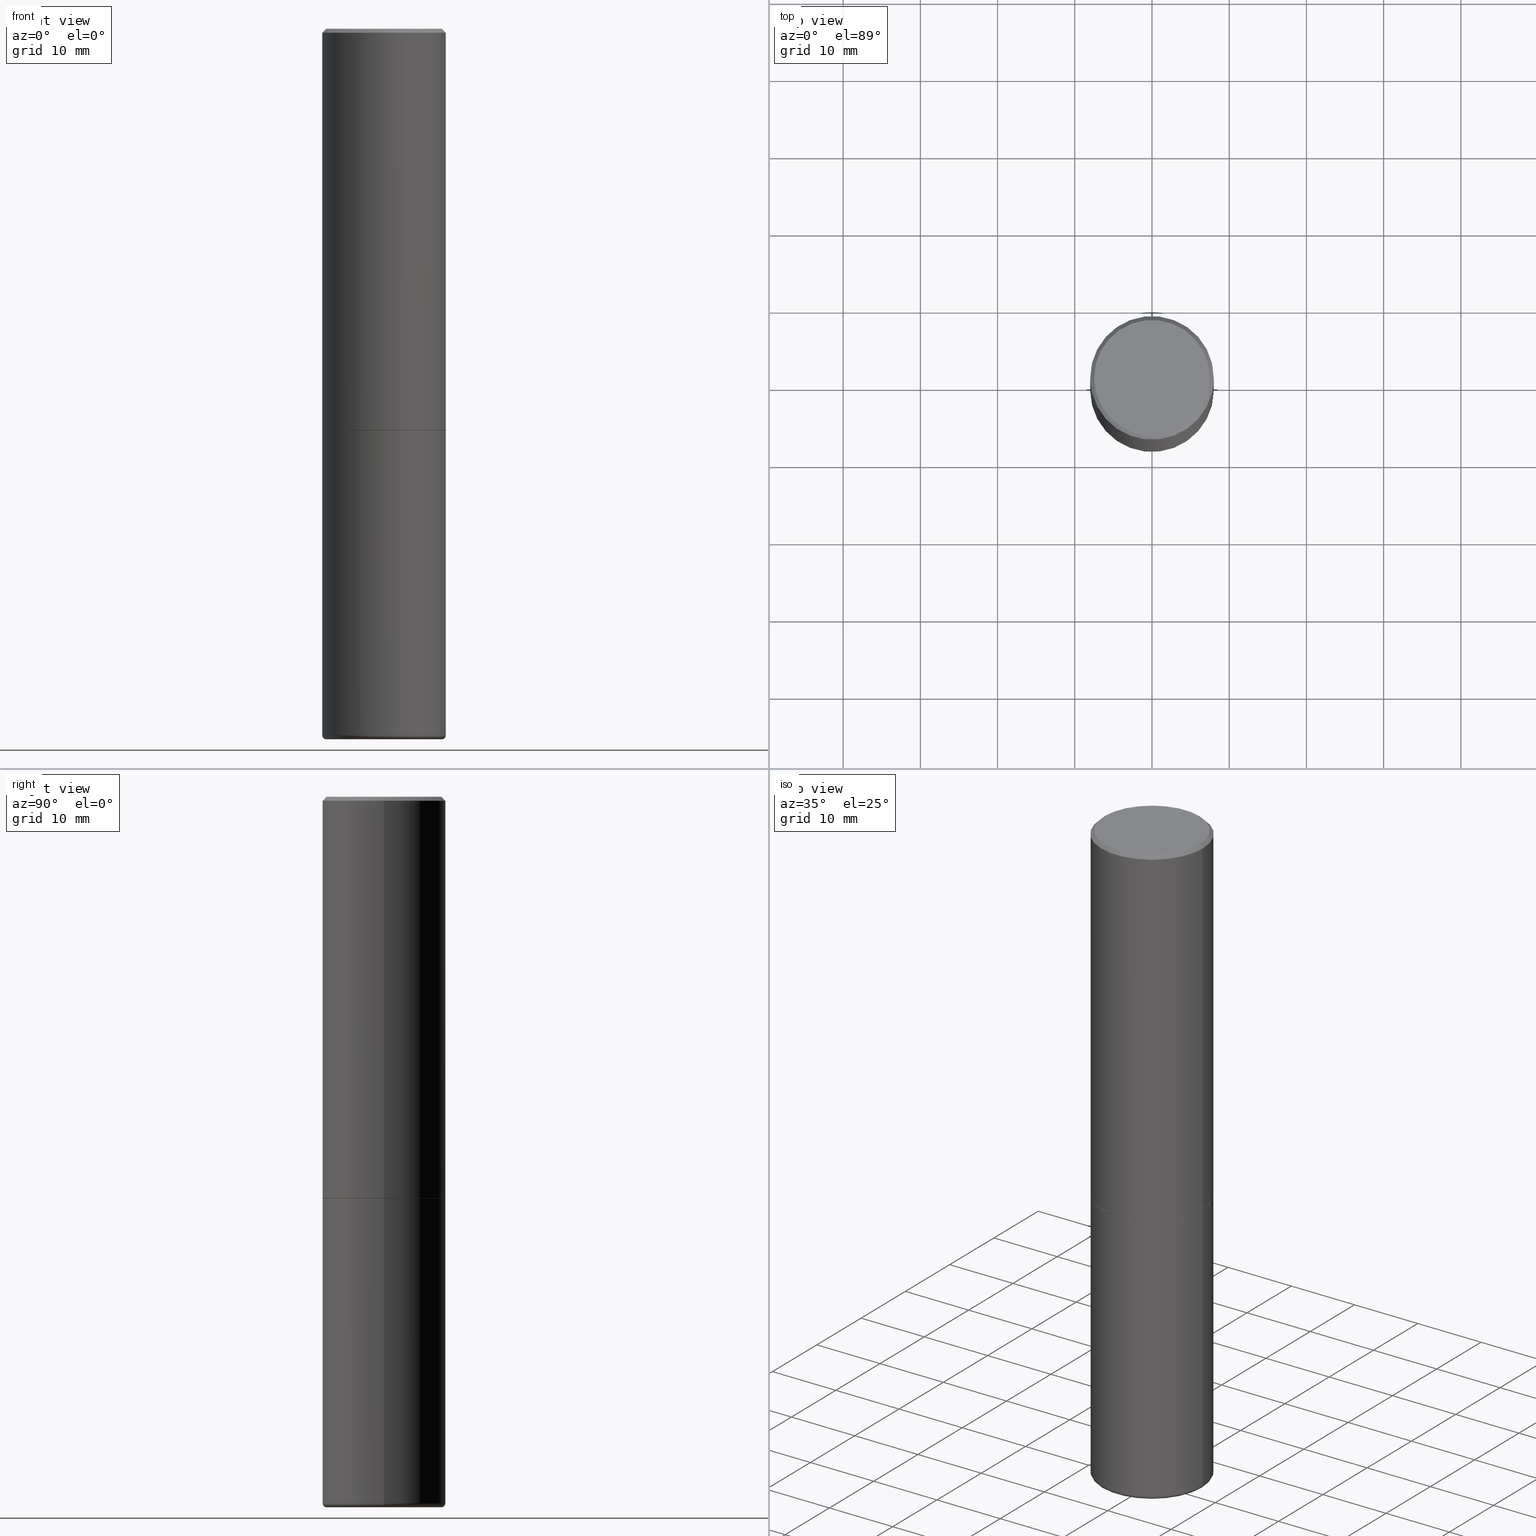
[diagram: canonical four-view strip — front | top / right | iso, engineering-drawing reading convention]
A machine part, canonical four-view strip (front | top / right | iso — engineering-drawing reading convention). The complete STEP part file that produces these views, byte-faithful:
ISO-10303-21;
HEADER;
FILE_DESCRIPTION (( 'STEP AP203' ),
    '1' );
FILE_NAME ('74737.STEP',
    '2024-05-02T19:15:35',
    ( '' ),
    ( '' ),
    'SwSTEP 2.0',
    'SolidWorks 2023',
    '' );
FILE_SCHEMA (( 'CONFIG_CONTROL_DESIGN' ));
ENDSEC;

DATA;
#1 = VECTOR ( 'NONE', #15, 39.37007874015748143 ) ;
#2 = CARTESIAN_POINT ( 'NONE',  ( 8.857488016002564476E-29, -1.264614540928987199E-14, -3.621999999999999886 ) ) ;
#3 = DIRECTION ( 'NONE',  ( 1.000000000000000000, -6.982962677686264344E-15, 0.000000000000000000 ) ) ;
#4 = ADVANCED_FACE ( 'NONE', ( #101 ), #106, .T. ) ;
#5 = DIRECTION ( 'NONE',  ( 1.000000000000000000, -6.982962677686265922E-15, 4.876176775795935793E-29 ) ) ;
#6 = CARTESIAN_POINT ( 'NONE',  ( 0.3149500000000000077, -2.199284095337289871E-15, 1.535751875536930130E-29 ) ) ;
#7 = AXIS2_PLACEMENT_3D ( 'NONE', #363, #398, #10 ) ;
#8 = DIRECTION ( 'NONE',  ( -6.982962677686266711E-15, -1.000000000000000000, 3.491481338843145583E-15 ) ) ;
#9 = EDGE_CURVE ( 'NONE', #251, #92, #352, .T. ) ;
#10 = DIRECTION ( 'NONE',  ( 1.000000000000000000, -6.982962677686266711E-15, 4.883557194083112901E-29 ) ) ;
#11 = MANIFOLD_SOLID_BREP ( 'Body-Move/Copy2[2]', #255 ) ;
#12 = DIRECTION ( 'NONE',  ( -2.445468806185136597E-29, 3.491481338843145583E-15, 1.000000000000000000 ) ) ;
#13 = ADVANCED_FACE ( 'NONE', ( #99 ), #277, .T. ) ;
#14 = FACE_OUTER_BOUND ( 'NONE', #24, .T. ) ;
#15 = DIRECTION ( 'NONE',  ( -2.445468806185136877E-29, 3.491481338843145188E-15, 1.000000000000000000 ) ) ;
#16 = APPROVAL_ROLE ( '' ) ;
#17 = CARTESIAN_POINT ( 'NONE',  ( 0.3149500000000000077, -9.347044692216978073E-15, -2.047199999999999687 ) ) ;
#18 = CIRCLE ( 'NONE', #70, 0.3139500000000000068 ) ;
#19 = CARTESIAN_POINT ( 'NONE',  ( -4.488561081641444621E-45, 6.408475632635922878E-31, 1.835460370743176819E-16 ) ) ;
#20 = ORIENTED_EDGE ( 'NONE', *, *, #104, .F. ) ;
#21 = CARTESIAN_POINT ( 'NONE',  ( 4.890937612370289799E-31, -6.982962677686315028E-17, -0.02000000000000006981 ) ) ;
#22 = PERSON_AND_ORGANIZATION_ROLE ( 'design_supplier' ) ;
#23 = EDGE_LOOP ( 'NONE', ( #210, #25 ) ) ;
#24 = EDGE_LOOP ( 'NONE', ( #405, #128, #313, #126 ) ) ;
#25 = ORIENTED_EDGE ( 'NONE', *, *, #273, .T. ) ;
#26 = SECURITY_CLASSIFICATION ( '', '', #372 ) ;
#27 = ORIENTED_EDGE ( 'NONE', *, *, #315, .T. ) ;
#28 = EDGE_CURVE ( 'NONE', #377, #30, #239, .T. ) ;
#29 = VECTOR ( 'NONE', #334, 39.37007874015748143 ) ;
#30 = VERTEX_POINT ( 'NONE', #330 ) ;
#31 = CARTESIAN_POINT ( 'NONE',  ( 8.809312280520716617E-29, -1.257736322691466396E-14, -3.602300000000000058 ) ) ;
#32 = AXIS2_PLACEMENT_3D ( 'NONE', #331, #366, #177 ) ;
#33 = CARTESIAN_POINT ( 'NONE',  ( -0.3149499999999999522, 2.129454468560426178E-15, -0.02000000000000006981 ) ) ;
#34 = VECTOR ( 'NONE', #390, 39.37007874015748143 ) ;
#35 = LINE ( 'NONE', #6, #347 ) ;
#36 = EDGE_CURVE ( 'NONE', #117, #205, #46, .T. ) ;
#37 = PLANE ( 'NONE',  #93 ) ;
#38 = CARTESIAN_POINT ( 'NONE',  ( 0.2952500000000000124, -1.470786513987674265E-14, -3.621999999999999886 ) ) ;
#39 = DIRECTION ( 'NONE',  ( 1.000000000000000000, -6.982962677686264344E-15, 0.000000000000000000 ) ) ;
#40 = CYLINDRICAL_SURFACE ( 'NONE', #252, 0.3149500000000000077 ) ;
#41 = ADVANCED_FACE ( 'NONE', ( #195 ), #40, .T. ) ;
#42 = CIRCLE ( 'NONE', #94, 0.2952500000000000124 ) ;
#43 = DIRECTION ( 'NONE',  ( 2.438088387897960049E-29, -3.491481338843145188E-15, -1.000000000000000000 ) ) ;
#44 = DIRECTION ( 'NONE',  ( 1.000000000000000000, -6.982962677686265922E-15, 4.874125435057325556E-29 ) ) ;
#45 = PERSON_AND_ORGANIZATION_ROLE ( 'classification_officer' ) ;
#46 = LINE ( 'NONE', #138, #29 ) ;
#47 = TOROIDAL_SURFACE ( 'NONE', #262, 0.2952500000000000124, 0.01969999999999989468 ) ;
#48 = CARTESIAN_POINT ( 'NONE',  ( -0.3149500000000000077, 2.237854346276435590E-15, -1.549218606675782676E-29 ) ) ;
#49 = ORIENTED_EDGE ( 'NONE', *, *, #412, .F. ) ;
#50 = EDGE_CURVE ( 'NONE', #156, #251, #217, .T. ) ;
#51 = VECTOR ( 'NONE', #348, 39.37007874015748143 ) ;
#52 = CARTESIAN_POINT ( 'NONE',  ( -0.3139500000000000068, -4.911713223612628457E-15, -2.047199999999999243 ) ) ;
#53 = CALENDAR_DATE ( 2024, 2, 5 ) ;
#54 = VERTEX_POINT ( 'NONE', #228 ) ;
#55 = CALENDAR_DATE ( 2024, 2, 5 ) ;
#56 = VERTEX_POINT ( 'NONE', #17 ) ;
#57 = ORIENTED_EDGE ( 'NONE', *, *, #50, .T. ) ;
#58 = AXIS2_PLACEMENT_3D ( 'NONE', #192, #148, #107 ) ;
#59 = EDGE_CURVE ( 'NONE', #413, #117, #253, .T. ) ;
#60 = CIRCLE ( 'NONE', #121, 0.3149499999999999522 ) ;
#61 = DIRECTION ( 'NONE',  ( 2.445468806185136597E-29, -3.491481338843145583E-15, -1.000000000000000000 ) ) ;
#62 = AXIS2_PLACEMENT_3D ( 'NONE', #21, #83, #236 ) ;
#63 = DIRECTION ( 'NONE',  ( -2.445468806185136597E-29, 3.491481338843145583E-15, 1.000000000000000000 ) ) ;
#64 = AXIS2_PLACEMENT_3D ( 'NONE', #137, #357, #66 ) ;
#65 = EDGE_CURVE ( 'NONE', #56, #185, #318, .T. ) ;
#66 = DIRECTION ( 'NONE',  ( -1.000000000000000000, 6.982962677686266711E-15, 0.000000000000000000 ) ) ;
#67 =( CONVERSION_BASED_UNIT ( 'INCH', #283 ) LENGTH_UNIT ( ) NAMED_UNIT ( #224 ) );
#68 = ADVANCED_FACE ( 'NONE', ( #102 ), #226, .F. ) ;
#69 = DIRECTION ( 'NONE',  ( 1.000000000000000000, -6.982962677686265922E-15, 4.874125435057325556E-29 ) ) ;
#70 = AXIS2_PLACEMENT_3D ( 'NONE', #115, #298, #233 ) ;
#71 = FACE_OUTER_BOUND ( 'NONE', #370, .T. ) ;
#72 = DIRECTION ( 'NONE',  ( 1.000000000000000000, -6.982962677686266711E-15, 4.876176775795936353E-29 ) ) ;
#73 = CIRCLE ( 'NONE', #351, 0.01969999999999985998 ) ;
#74 = CARTESIAN_POINT ( 'NONE',  ( 5.006363740022209999E-29, -7.147760596879685046E-15, -2.047199999999999243 ) ) ;
#75 = CARTESIAN_POINT ( 'NONE',  ( 0.000000000000000000, 0.000000000000000000, 0.000000000000000000 ) ) ;
#76 = APPROVAL ( #178, 'UNSPECIFIED' ) ;
#77 = DIRECTION ( 'NONE',  ( -2.445468806185136597E-29, 3.491481338843145583E-15, 1.000000000000000000 ) ) ;
#78 = CYLINDRICAL_SURFACE ( 'NONE', #386, 0.3149500000000000077 ) ;
#79 = DATE_AND_TIME ( #367, #314 ) ;
#80 = DIRECTION ( 'NONE',  ( -2.445468806185136597E-29, 3.491481338843145583E-15, 1.000000000000000000 ) ) ;
#81 = LINE ( 'NONE', #268, #1 ) ;
#82 = ORIENTED_EDGE ( 'NONE', *, *, #312, .T. ) ;
#83 = DIRECTION ( 'NONE',  ( -2.445468806185136597E-29, 3.491481338843145583E-15, 1.000000000000000000 ) ) ;
#84 = DATE_TIME_ROLE ( 'classification_date' ) ;
#85 = ADVANCED_FACE ( 'NONE', ( #364 ), #284, .T. ) ;
#86 = ORIENTED_EDGE ( 'NONE', *, *, #418, .F. ) ;
#87 = APPLICATION_PROTOCOL_DEFINITION ( 'international standard', 'config_control_design', 1994, #227 ) ;
#88 = ORIENTED_EDGE ( 'NONE', *, *, #356, .T. ) ;
#89 = ADVANCED_FACE ( 'NONE', ( #14 ), #142, .T. ) ;
#90 = COORDINATED_UNIVERSAL_TIME_OFFSET ( 5, 0, .BEHIND. ) ;
#91 = ORIENTED_EDGE ( 'NONE', *, *, #59, .F. ) ;
#92 = VERTEX_POINT ( 'NONE', #113 ) ;
#93 = AXIS2_PLACEMENT_3D ( 'NONE', #167, #170, #287 ) ;
#94 = AXIS2_PLACEMENT_3D ( 'NONE', #368, #80, #203 ) ;
#95 = EDGE_LOOP ( 'NONE', ( #342, #269, #340, #125 ) ) ;
#96 = EDGE_CURVE ( 'NONE', #92, #56, #35, .T. ) ;
#97 = AXIS2_PLACEMENT_3D ( 'NONE', #31, #280, #131 ) ;
#98 = EDGE_LOOP ( 'NONE', ( #274, #123, #242, #184 ) ) ;
#99 = FACE_OUTER_BOUND ( 'NONE', #153, .T. ) ;
#100 = CARTESIAN_POINT ( 'NONE',  ( 0.3149499999999999522, -2.230543471175006661E-15, -0.02000000000000006981 ) ) ;
#101 = FACE_OUTER_BOUND ( 'NONE', #207, .T. ) ;
#102 = FACE_OUTER_BOUND ( 'NONE', #23, .T. ) ;
#103 = AXIS2_PLACEMENT_3D ( 'NONE', #300, #288, #261 ) ;
#104 = EDGE_CURVE ( 'NONE', #413, #317, #166, .T. ) ;
#105 = CARTESIAN_POINT ( 'NONE',  ( 8.726305720484796028E-29, -1.820591954908441559E-15, -2.047200000000000131 ) ) ;
#106 = CONICAL_SURFACE ( 'NONE', #216, 0.3149499999999999522, 0.7853981633974469467 ) ;
#107 = DIRECTION ( 'NONE',  ( 1.000000000000000000, -6.982962677686264344E-15, 0.000000000000000000 ) ) ;
#108 = PERSON_AND_ORGANIZATION ( #392, #110 ) ;
#109 = CYLINDRICAL_SURFACE ( 'NONE', #323, 0.3149500000000001743 ) ;
#110 = ORGANIZATION ( 'UNSPECIFIED', 'UNSPECIFIED', '' ) ;
#111 = CARTESIAN_POINT ( 'NONE',  ( 4.890937612370289799E-31, -6.982962677686315028E-17, -0.02000000000000006981 ) ) ;
#112 = APPROVAL_DATE_TIME ( #152, #353 ) ;
#113 = CARTESIAN_POINT ( 'NONE',  ( 0.3149499999999999522, -1.477664732225195383E-14, -3.602300000000000058 ) ) ;
#114 = CC_DESIGN_DATE_AND_TIME_ASSIGNMENT ( #183, #122, ( #200 ) ) ;
#115 = CARTESIAN_POINT ( 'NONE',  ( 5.006363740022209999E-29, -7.147760596879685046E-15, -2.047199999999999243 ) ) ;
#116 = DATE_AND_TIME ( #339, #258 ) ;
#117 = VERTEX_POINT ( 'NONE', #194 ) ;
#118 = COORDINATED_UNIVERSAL_TIME_OFFSET ( 5, 0, .BEHIND. ) ;
#119 = ADVANCED_FACE ( 'NONE', ( #145 ), #109, .T. ) ;
#120 = ORIENTED_EDGE ( 'NONE', *, *, #132, .F. ) ;
#121 = AXIS2_PLACEMENT_3D ( 'NONE', #111, #301, #305 ) ;
#122 = DATE_TIME_ROLE ( 'creation_date' ) ;
#123 = ORIENTED_EDGE ( 'NONE', *, *, #412, .T. ) ;
#124 = EDGE_CURVE ( 'NONE', #205, #249, #168, .T. ) ;
#125 = ORIENTED_EDGE ( 'NONE', *, *, #312, .F. ) ;
#126 = ORIENTED_EDGE ( 'NONE', *, *, #124, .F. ) ;
#127 = APPLICATION_CONTEXT ( 'configuration controlled 3d designs of mechanical parts and assemblies' ) ;
#128 = ORIENTED_EDGE ( 'NONE', *, *, #389, .T. ) ;
#129 = CIRCLE ( 'NONE', #213, 0.3149500000000002853 ) ;
#130 = EDGE_LOOP ( 'NONE', ( #120, #187 ) ) ;
#131 = DIRECTION ( 'NONE',  ( 1.000000000000000000, -6.982962677686269866E-15, 0.000000000000000000 ) ) ;
#132 = EDGE_CURVE ( 'NONE', #160, #156, #359, .T. ) ;
#133 = CC_DESIGN_PERSON_AND_ORGANIZATION_ASSIGNMENT ( #407, #150, ( #281 ) ) ;
#134 = DIRECTION ( 'NONE',  ( 2.438088387897960049E-29, -3.491481338843145188E-15, -1.000000000000000000 ) ) ;
#135 = CARTESIAN_POINT ( 'NONE',  ( -0.3149500000000000077, -7.624707565620739308E-15, -2.047199999999999687 ) ) ;
#136 = DIRECTION ( 'NONE',  ( 7.105427357601001859E-15, 1.000000000000000000, -3.491481338843145583E-15 ) ) ;
#137 = CARTESIAN_POINT ( 'NONE',  ( 4.890937612370289799E-31, -6.982962677686315028E-17, -0.02000000000000006981 ) ) ;
#138 = CARTESIAN_POINT ( 'NONE',  ( 0.3139500000000000068, -9.340061729539288903E-15, -2.047199999999999243 ) ) ;
#139 = CC_DESIGN_APPROVAL ( #76, ( #416 ) ) ;
#140 = APPROVAL_PERSON_ORGANIZATION ( #240, #353, #16 ) ;
#141 = CARTESIAN_POINT ( 'NONE',  ( 8.809312280520716617E-29, -1.257736322691466396E-14, -3.602300000000000058 ) ) ;
#142 = CYLINDRICAL_SURFACE ( 'NONE', #103, 0.3149500000000001743 ) ;
#143 = FACE_OUTER_BOUND ( 'NONE', #159, .T. ) ;
#144 = COORDINATED_UNIVERSAL_TIME_OFFSET ( 5, 0, .BEHIND. ) ;
#145 = FACE_OUTER_BOUND ( 'NONE', #98, .T. ) ;
#146 = DIRECTION ( 'NONE',  ( -2.445468806185136597E-29, 3.491481338843145583E-15, 1.000000000000000000 ) ) ;
#147 = PERSON_AND_ORGANIZATION ( #392, #110 ) ;
#148 = DIRECTION ( 'NONE',  ( -2.445468806185136597E-29, 3.491481338843145583E-15, 1.000000000000000000 ) ) ;
#149 = CARTESIAN_POINT ( 'NONE',  ( 5.003918271216025517E-29, -7.144269115540843617E-15, -2.046199999999999797 ) ) ;
#150 = PERSON_AND_ORGANIZATION_ROLE ( 'design_owner' ) ;
#151 = ORIENTED_EDGE ( 'NONE', *, *, #59, .T. ) ;
#152 = DATE_AND_TIME ( #401, #278 ) ;
#153 = EDGE_LOOP ( 'NONE', ( #20, #151, #415, #49 ) ) ;
#154 = ADVANCED_BREP_SHAPE_REPRESENTATION ( '74737', ( #157, #11, #254 ), #191 ) ;
#155 = VECTOR ( 'NONE', #400, 39.37007874015748143 ) ;
#156 = VERTEX_POINT ( 'NONE', #264 ) ;
#157 = MANIFOLD_SOLID_BREP ( 'Body-Move/Copy2[1]', #387 ) ;
#158 = ORIENTED_EDGE ( 'NONE', *, *, #162, .T. ) ;
#159 = EDGE_LOOP ( 'NONE', ( #406, #91 ) ) ;
#160 = VERTEX_POINT ( 'NONE', #38 ) ;
#161 = EDGE_CURVE ( 'NONE', #156, #160, #42, .T. ) ;
#162 = EDGE_CURVE ( 'NONE', #160, #92, #73, .T. ) ;
#163 =( NAMED_UNIT ( * ) PLANE_ANGLE_UNIT ( ) SI_UNIT ( $, .RADIAN. ) );
#164 = DIRECTION ( 'NONE',  ( -0.7071067811865465735, 2.468850131082246805E-15, -0.7071067811865484609 ) ) ;
#165 = CC_DESIGN_APPROVAL ( #353, ( #26 ) ) ;
#166 = LINE ( 'NONE', #402, #34 ) ;
#167 = CARTESIAN_POINT ( 'NONE',  ( 2.059624841783562486E-15, 0.2949499999999997679, -9.380394023546260134E-16 ) ) ;
#168 = LINE ( 'NONE', #395, #208 ) ;
#169 = ADVANCED_FACE ( 'NONE', ( #193 ), #211, .T. ) ;
#170 = DIRECTION ( 'NONE',  ( 2.438088387897960049E-29, -3.491481338843145188E-15, -1.000000000000000000 ) ) ;
#171 = DIRECTION ( 'NONE',  ( -1.000000000000000000, 7.105427357600978193E-15, 0.000000000000000000 ) ) ;
#172 = DIRECTION ( 'NONE',  ( -2.445468806185136597E-29, 3.491481338843145583E-15, 1.000000000000000000 ) ) ;
#173 = DIRECTION ( 'NONE',  ( 1.000000000000000000, 0.000000000000000000, 0.000000000000000000 ) ) ;
#174 = CARTESIAN_POINT ( 'NONE',  ( 8.857488016002564476E-29, -1.264614540928987199E-14, -3.621999999999999886 ) ) ;
#175 = CARTESIAN_POINT ( 'NONE',  ( 0.000000000000000000, 0.000000000000000000, 0.000000000000000000 ) ) ;
#176 = DIRECTION ( 'NONE',  ( 1.000000000000000000, -6.982962677686265922E-15, 4.876176775795935232E-29 ) ) ;
#177 = DIRECTION ( 'NONE',  ( 1.000000000000000000, -6.982962677686267499E-15, 0.000000000000000000 ) ) ;
#178 = APPROVAL_STATUS ( 'not_yet_approved' ) ;
#179 = ORIENTED_EDGE ( 'NONE', *, *, #161, .T. ) ;
#180 = CARTESIAN_POINT ( 'NONE',  ( -0.3149500000000002853, -1.369195024882414317E-15, -2.046199999999999797 ) ) ;
#181 = APPROVAL_DATE_TIME ( #116, #76 ) ;
#182 = ORIENTED_EDGE ( 'NONE', *, *, #65, .F. ) ;
#183 = DATE_AND_TIME ( #55, #221 ) ;
#184 = ORIENTED_EDGE ( 'NONE', *, *, #414, .F. ) ;
#185 = VERTEX_POINT ( 'NONE', #135 ) ;
#186 = AXIS2_PLACEMENT_3D ( 'NONE', #289, #12, #329 ) ;
#187 = ORIENTED_EDGE ( 'NONE', *, *, #161, .F. ) ;
#188 = ADVANCED_FACE ( 'NONE', ( #143 ), #326, .F. ) ;
#189 = LINE ( 'NONE', #33, #381 ) ;
#190 = DIRECTION ( 'NONE',  ( 1.000000000000000000, -6.982962677686279332E-15, 0.000000000000000000 ) ) ;
#191 =( GEOMETRIC_REPRESENTATION_CONTEXT ( 3 ) GLOBAL_UNCERTAINTY_ASSIGNED_CONTEXT ( ( #316 ) ) GLOBAL_UNIT_ASSIGNED_CONTEXT ( ( #67, #163, #302 ) ) REPRESENTATION_CONTEXT ( 'NONE', 'WORKASPACE' ) );
#192 = CARTESIAN_POINT ( 'NONE',  ( 5.006363740022209999E-29, -7.147760596879685046E-15, -2.047199999999999243 ) ) ;
#193 = FACE_OUTER_BOUND ( 'NONE', #408, .T. ) ;
#194 = CARTESIAN_POINT ( 'NONE',  ( 0.3139500000000000068, -9.340061729539288903E-15, -2.047199999999999243 ) ) ;
#195 = FACE_OUTER_BOUND ( 'NONE', #212, .T. ) ;
#196 = ADVANCED_FACE ( 'NONE', ( #256 ), #362, .T. ) ;
#197 = CARTESIAN_POINT ( 'NONE',  ( 5.006363740022211680E-29, -7.147760596879688202E-15, -2.047200000000000131 ) ) ;
#198 = DIRECTION ( 'NONE',  ( -2.445468806185136597E-29, 3.491481338843145583E-15, 1.000000000000000000 ) ) ;
#199 = LOCAL_TIME ( 15, 15, 35.00000000000000000, #118 ) ;
#200 = PRODUCT_DEFINITION ( 'UNKNOWN', '', #416, #382 ) ;
#201 = DIRECTION ( 'NONE',  ( 1.000000000000000000, -6.982962677686266711E-15, 4.876176775795936353E-29 ) ) ;
#202 = APPROVAL_DATE_TIME ( #410, #282 ) ;
#203 = DIRECTION ( 'NONE',  ( 1.000000000000000000, -6.982962677686266711E-15, 0.000000000000000000 ) ) ;
#204 = DIRECTION ( 'NONE',  ( -2.445468806185136597E-29, 3.491481338843145583E-15, 1.000000000000000000 ) ) ;
#205 = VERTEX_POINT ( 'NONE', #223 ) ;
#206 = CARTESIAN_POINT ( 'NONE',  ( 0.3149499999999999522, -2.230543471175006661E-15, -0.02000000000000006981 ) ) ;
#207 = EDGE_LOOP ( 'NONE', ( #238, #246, #82, #276 ) ) ;
#208 = VECTOR ( 'NONE', #365, 39.37007874015748143 ) ;
#209 = CIRCLE ( 'NONE', #62, 0.3149499999999999522 ) ;
#210 = ORIENTED_EDGE ( 'NONE', *, *, #65, .T. ) ;
#211 = CONICAL_SURFACE ( 'NONE', #361, 0.3139500000000000068, 0.7853981633976873100 ) ;
#212 = EDGE_LOOP ( 'NONE', ( #86, #272, #345, #303 ) ) ;
#213 = AXIS2_PLACEMENT_3D ( 'NONE', #149, #204, #403 ) ;
#214 = ORIENTED_EDGE ( 'NONE', *, *, #36, .F. ) ;
#215 = EDGE_LOOP ( 'NONE', ( #250, #179, #158, #270 ) ) ;
#216 = AXIS2_PLACEMENT_3D ( 'NONE', #383, #61, #319 ) ;
#217 = CIRCLE ( 'NONE', #322, 0.01969999999999985998 ) ;
#218 = CARTESIAN_POINT ( 'NONE',  ( 5.006363740022209999E-29, -7.147760596879685046E-15, -2.047199999999999243 ) ) ;
#219 = ADVANCED_FACE ( 'NONE', ( #71 ), #37, .F. ) ;
#220 = AXIS2_PLACEMENT_3D ( 'NONE', #105, #43, #325 ) ;
#221 = LOCAL_TIME ( 15, 15, 35.00000000000000000, #237 ) ;
#222 = CARTESIAN_POINT ( 'NONE',  ( -0.3149499999999999522, -1.033950888063822640E-14, -3.602300000000000058 ) ) ;
#223 = CARTESIAN_POINT ( 'NONE',  ( 0.3149500000000002853, -9.343553210878135066E-15, -2.046199999999999797 ) ) ;
#224 = DIMENSIONAL_EXPONENTS ( 1.000000000000000000, 0.000000000000000000, 0.000000000000000000, 0.000000000000000000, 0.000000000000000000, 0.000000000000000000, 0.000000000000000000 ) ;
#225 = AXIS2_PLACEMENT_3D ( 'NONE', #19, #146, #44 ) ;
#226 = PLANE ( 'NONE',  #220 ) ;
#227 = APPLICATION_CONTEXT ( 'configuration controlled 3d designs of mechanical parts and assemblies' ) ;
#228 = CARTESIAN_POINT ( 'NONE',  ( -0.3149499999999999522, 2.129454468560426178E-15, -0.02000000000000006981 ) ) ;
#229 = CC_DESIGN_PERSON_AND_ORGANIZATION_ASSIGNMENT ( #344, #22, ( #416 ) ) ;
#230 = DIRECTION ( 'NONE',  ( 1.000000000000000000, -6.982962677686269866E-15, 0.000000000000000000 ) ) ;
#231 = PERSON_AND_ORGANIZATION ( #392, #110 ) ;
#232 = DIRECTION ( 'NONE',  ( -2.445468806185136597E-29, 3.491481338843145583E-15, 1.000000000000000000 ) ) ;
#233 = DIRECTION ( 'NONE',  ( 1.000000000000000000, -6.982962677686264344E-15, 0.000000000000000000 ) ) ;
#234 = SHAPE_DEFINITION_REPRESENTATION ( #358, #154 ) ;
#235 = CARTESIAN_POINT ( 'NONE',  ( 0.2952500000000000124, -1.463908295750153462E-14, -3.602300000000000058 ) ) ;
#236 = DIRECTION ( 'NONE',  ( 1.000000000000000000, -6.982962677686266711E-15, 0.000000000000000000 ) ) ;
#237 = COORDINATED_UNIVERSAL_TIME_OFFSET ( 5, 0, .BEHIND. ) ;
#238 = ORIENTED_EDGE ( 'NONE', *, *, #399, .F. ) ;
#239 = CIRCLE ( 'NONE', #354, 0.2949499999999997679 ) ;
#240 = PERSON_AND_ORGANIZATION ( #392, #110 ) ;
#241 = CC_DESIGN_DATE_AND_TIME_ASSIGNMENT ( #79, #84, ( #26 ) ) ;
#242 = ORIENTED_EDGE ( 'NONE', *, *, #124, .T. ) ;
#243 = CC_DESIGN_SECURITY_CLASSIFICATION ( #26, ( #416 ) ) ;
#244 = CIRCLE ( 'NONE', #186, 0.3149500000000000077 ) ;
#245 = PERSON_AND_ORGANIZATION_ROLE ( 'creator' ) ;
#246 = ORIENTED_EDGE ( 'NONE', *, *, #28, .F. ) ;
#247 = CIRCLE ( 'NONE', #320, 0.3149500000000000077 ) ;
#248 = PRODUCT_RELATED_PRODUCT_CATEGORY ( 'detail', '', ( #281 ) ) ;
#249 = VERTEX_POINT ( 'NONE', #100 ) ;
#250 = ORIENTED_EDGE ( 'NONE', *, *, #50, .F. ) ;
#251 = VERTEX_POINT ( 'NONE', #222 ) ;
#252 = AXIS2_PLACEMENT_3D ( 'NONE', #328, #232, #72 ) ;
#253 = CIRCLE ( 'NONE', #58, 0.3139500000000000068 ) ;
#254 = AXIS2_PLACEMENT_3D ( 'NONE', #271, #376, #173 ) ;
#255 = CLOSED_SHELL ( 'NONE', ( #169, #89, #275, #4, #119, #13, #188, #219 ) ) ;
#256 = FACE_OUTER_BOUND ( 'NONE', #130, .T. ) ;
#257 = DIRECTION ( 'NONE',  ( 1.000000000000000000, -6.982962677686269866E-15, 0.000000000000000000 ) ) ;
#258 = LOCAL_TIME ( 15, 15, 35.00000000000000000, #90 ) ;
#259 = CARTESIAN_POINT ( 'NONE',  ( -0.2952500000000000124, -1.047948579958296807E-14, -3.602300000000000058 ) ) ;
#260 = CARTESIAN_POINT ( 'NONE',  ( 8.809312280520716617E-29, -1.257736322691466396E-14, -3.602300000000000058 ) ) ;
#261 = DIRECTION ( 'NONE',  ( 1.000000000000000000, -6.982962677686265922E-15, 4.876176775795935232E-29 ) ) ;
#262 = AXIS2_PLACEMENT_3D ( 'NONE', #260, #172, #295 ) ;
#263 = FACE_OUTER_BOUND ( 'NONE', #95, .T. ) ;
#264 = CARTESIAN_POINT ( 'NONE',  ( -0.2952500000000000124, -1.044388843129820283E-14, -3.621999999999999886 ) ) ;
#265 = LINE ( 'NONE', #206, #155 ) ;
#266 = COORDINATED_UNIVERSAL_TIME_OFFSET ( 5, 0, .BEHIND. ) ;
#267 = DIRECTION ( 'NONE',  ( -2.445468806185136877E-29, 3.491481338843145188E-15, 1.000000000000000000 ) ) ;
#268 = CARTESIAN_POINT ( 'NONE',  ( -0.3149500000000001743, 2.237854346276436774E-15, -1.549218606675783237E-29 ) ) ;
#269 = ORIENTED_EDGE ( 'NONE', *, *, #399, .T. ) ;
#270 = ORIENTED_EDGE ( 'NONE', *, *, #9, .F. ) ;
#271 = CARTESIAN_POINT ( 'NONE',  ( 0.000000000000000000, 0.000000000000000000, 0.000000000000000000 ) ) ;
#272 = ORIENTED_EDGE ( 'NONE', *, *, #9, .T. ) ;
#273 = EDGE_CURVE ( 'NONE', #185, #56, #244, .T. ) ;
#274 = ORIENTED_EDGE ( 'NONE', *, *, #389, .F. ) ;
#275 = ADVANCED_FACE ( 'NONE', ( #263 ), #307, .T. ) ;
#276 = ORIENTED_EDGE ( 'NONE', *, *, #414, .T. ) ;
#277 = CONICAL_SURFACE ( 'NONE', #379, 0.3139500000000000068, 0.7853981633976873100 ) ;
#278 = LOCAL_TIME ( 15, 15, 35.00000000000000000, #266 ) ;
#279 = AXIS2_PLACEMENT_3D ( 'NONE', #2, #134, #394 ) ;
#280 = DIRECTION ( 'NONE',  ( -2.445468806185136597E-29, 3.491481338843145583E-15, 1.000000000000000000 ) ) ;
#281 = PRODUCT ( '74737', '74737', '', ( #310 ) ) ;
#282 = APPROVAL ( #341, 'UNSPECIFIED' ) ;
#283 = LENGTH_MEASURE_WITH_UNIT ( LENGTH_MEASURE( 0.02539999999999999897 ), #393 );
#284 = TOROIDAL_SURFACE ( 'NONE', #7, 0.2952500000000000124, 0.01969999999999989468 ) ;
#285 = AXIS2_PLACEMENT_3D ( 'NONE', #174, #327, #297 ) ;
#286 = CIRCLE ( 'NONE', #32, 0.3149500000000002853 ) ;
#287 = DIRECTION ( 'NONE',  ( -1.000000000000000000, 6.982962677686265922E-15, -4.876176775795935793E-29 ) ) ;
#288 = DIRECTION ( 'NONE',  ( -2.445468806185136597E-29, 3.491481338843145583E-15, 1.000000000000000000 ) ) ;
#289 = CARTESIAN_POINT ( 'NONE',  ( 5.006363740022211120E-29, -7.147760596879686624E-15, -2.047199999999999687 ) ) ;
#290 = CARTESIAN_POINT ( 'NONE',  ( 5.006363740022211120E-29, -7.147760596879686624E-15, -2.047199999999999687 ) ) ;
#291 = ADVANCED_FACE ( 'NONE', ( #293 ), #47, .T. ) ;
#292 = APPROVAL_PERSON_ORGANIZATION ( #147, #76, #374 ) ;
#293 = FACE_OUTER_BOUND ( 'NONE', #215, .T. ) ;
#294 = DIRECTION ( 'NONE',  ( -2.445468806185136597E-29, 3.491481338843145583E-15, 1.000000000000000000 ) ) ;
#295 = DIRECTION ( 'NONE',  ( 1.000000000000000000, -6.982962677686266711E-15, 4.883557194083112901E-29 ) ) ;
#296 = APPROVAL_ROLE ( '' ) ;
#297 = DIRECTION ( 'NONE',  ( 1.000000000000000000, -6.982962677686266711E-15, 0.000000000000000000 ) ) ;
#298 = DIRECTION ( 'NONE',  ( -2.445468806185136597E-29, 3.491481338843145583E-15, 1.000000000000000000 ) ) ;
#299 = APPROVAL_STATUS ( 'not_yet_approved' ) ;
#300 = CARTESIAN_POINT ( 'NONE',  ( 0.000000000000000000, 0.000000000000000000, 0.000000000000000000 ) ) ;
#301 = DIRECTION ( 'NONE',  ( -2.445468806185136597E-29, 3.491481338843145583E-15, 1.000000000000000000 ) ) ;
#302 =( NAMED_UNIT ( * ) SI_UNIT ( $, .STERADIAN. ) SOLID_ANGLE_UNIT ( ) );
#303 = ORIENTED_EDGE ( 'NONE', *, *, #273, .F. ) ;
#304 = APPROVAL_PERSON_ORGANIZATION ( #108, #282, #296 ) ;
#305 = DIRECTION ( 'NONE',  ( 1.000000000000000000, -6.982962677686266711E-15, 0.000000000000000000 ) ) ;
#306 = PERSON_AND_ORGANIZATION ( #392, #110 ) ;
#307 = CONICAL_SURFACE ( 'NONE', #64, 0.3149499999999999522, 0.7853981633974469467 ) ;
#308 = ORIENTED_EDGE ( 'NONE', *, *, #309, .T. ) ;
#309 = EDGE_CURVE ( 'NONE', #92, #251, #247, .T. ) ;
#310 = MECHANICAL_CONTEXT ( 'NONE', #127, 'mechanical' ) ;
#311 = ORIENTED_EDGE ( 'NONE', *, *, #418, .T. ) ;
#312 = EDGE_CURVE ( 'NONE', #377, #54, #189, .T. ) ;
#313 = ORIENTED_EDGE ( 'NONE', *, *, #350, .F. ) ;
#314 = LOCAL_TIME ( 15, 15, 35.00000000000000000, #144 ) ;
#315 = EDGE_CURVE ( 'NONE', #30, #377, #355, .T. ) ;
#316 = UNCERTAINTY_MEASURE_WITH_UNIT (LENGTH_MEASURE( 1.000000000000000082E-05 ), #67, 'distance_accuracy_value', 'NONE');
#317 = VERTEX_POINT ( 'NONE', #180 ) ;
#318 = CIRCLE ( 'NONE', #409, 0.3149500000000000077 ) ;
#319 = DIRECTION ( 'NONE',  ( -1.000000000000000000, 6.982962677686266711E-15, 0.000000000000000000 ) ) ;
#320 = AXIS2_PLACEMENT_3D ( 'NONE', #141, #396, #230 ) ;
#321 = CC_DESIGN_PERSON_AND_ORGANIZATION_ASSIGNMENT ( #231, #45, ( #26 ) ) ;
#322 = AXIS2_PLACEMENT_3D ( 'NONE', #259, #136, #171 ) ;
#323 = AXIS2_PLACEMENT_3D ( 'NONE', #75, #77, #176 ) ;
#324 = DIRECTION ( 'NONE',  ( -2.438088387897960049E-29, 3.491481338843145188E-15, 1.000000000000000000 ) ) ;
#325 = DIRECTION ( 'NONE',  ( -1.000000000000000000, 6.982962677686265922E-15, -4.876176775795935793E-29 ) ) ;
#326 = PLANE ( 'NONE',  #417 ) ;
#327 = DIRECTION ( 'NONE',  ( -2.445468806185136597E-29, 3.491481338843145583E-15, 1.000000000000000000 ) ) ;
#328 = CARTESIAN_POINT ( 'NONE',  ( 0.000000000000000000, 0.000000000000000000, 0.000000000000000000 ) ) ;
#329 = DIRECTION ( 'NONE',  ( 1.000000000000000000, -6.982962677686269866E-15, 0.000000000000000000 ) ) ;
#330 = CARTESIAN_POINT ( 'NONE',  ( 0.2949499999999997679, -2.127023677808858891E-15, 1.835460370743323251E-16 ) ) ;
#331 = CARTESIAN_POINT ( 'NONE',  ( 5.003918271216025517E-29, -7.144269115540843617E-15, -2.046199999999999797 ) ) ;
#332 = EDGE_CURVE ( 'NONE', #205, #317, #286, .T. ) ;
#333 = PERSON_AND_ORGANIZATION_ROLE ( 'creator' ) ;
#334 = DIRECTION ( 'NONE',  ( 0.7071067811867165487, -2.468850131084027659E-15, 0.7071067811863784858 ) ) ;
#335 = LINE ( 'NONE', #48, #51 ) ;
#336 = ADVANCED_FACE ( 'NONE', ( #338 ), #78, .T. ) ;
#337 = ORIENTED_EDGE ( 'NONE', *, *, #309, .F. ) ;
#338 = FACE_OUTER_BOUND ( 'NONE', #380, .T. ) ;
#339 = CALENDAR_DATE ( 2024, 2, 5 ) ;
#340 = ORIENTED_EDGE ( 'NONE', *, *, #350, .T. ) ;
#341 = APPROVAL_STATUS ( 'not_yet_approved' ) ;
#342 = ORIENTED_EDGE ( 'NONE', *, *, #315, .F. ) ;
#343 = CC_DESIGN_PERSON_AND_ORGANIZATION_ASSIGNMENT ( #404, #245, ( #200 ) ) ;
#344 = PERSON_AND_ORGANIZATION ( #392, #110 ) ;
#345 = ORIENTED_EDGE ( 'NONE', *, *, #96, .T. ) ;
#346 = ORIENTED_EDGE ( 'NONE', *, *, #96, .F. ) ;
#347 = VECTOR ( 'NONE', #267, 39.37007874015748143 ) ;
#348 = DIRECTION ( 'NONE',  ( -2.445468806185136877E-29, 3.491481338843145188E-15, 1.000000000000000000 ) ) ;
#349 = ORIENTED_EDGE ( 'NONE', *, *, #132, .T. ) ;
#350 = EDGE_CURVE ( 'NONE', #249, #54, #209, .T. ) ;
#351 = AXIS2_PLACEMENT_3D ( 'NONE', #235, #8, #190 ) ;
#352 = CIRCLE ( 'NONE', #97, 0.3149500000000000077 ) ;
#353 = APPROVAL ( #299, 'UNSPECIFIED' ) ;
#354 = AXIS2_PLACEMENT_3D ( 'NONE', #391, #198, #69 ) ;
#355 = CIRCLE ( 'NONE', #225, 0.2949499999999997679 ) ;
#356 = EDGE_CURVE ( 'NONE', #117, #413, #18, .T. ) ;
#357 = DIRECTION ( 'NONE',  ( 2.445468806185136597E-29, -3.491481338843145583E-15, -1.000000000000000000 ) ) ;
#358 = PRODUCT_DEFINITION_SHAPE ( 'NONE', 'NONE',  #200 ) ;
#359 = CIRCLE ( 'NONE', #285, 0.2952500000000000124 ) ;
#360 = CC_DESIGN_APPROVAL ( #282, ( #200 ) ) ;
#361 = AXIS2_PLACEMENT_3D ( 'NONE', #74, #388, #39 ) ;
#362 = PLANE ( 'NONE',  #279 ) ;
#363 = CARTESIAN_POINT ( 'NONE',  ( 8.809312280520716617E-29, -1.257736322691466396E-14, -3.602300000000000058 ) ) ;
#364 = FACE_OUTER_BOUND ( 'NONE', #375, .T. ) ;
#365 = DIRECTION ( 'NONE',  ( -2.445468806185136877E-29, 3.491481338843145188E-15, 1.000000000000000000 ) ) ;
#366 = DIRECTION ( 'NONE',  ( -2.445468806185136597E-29, 3.491481338843145583E-15, 1.000000000000000000 ) ) ;
#367 = CALENDAR_DATE ( 2024, 2, 5 ) ;
#368 = CARTESIAN_POINT ( 'NONE',  ( 8.857488016002564476E-29, -1.264614540928987199E-14, -3.621999999999999886 ) ) ;
#369 = DIRECTION ( 'NONE',  ( -2.445468806185136597E-29, 3.491481338843145583E-15, 1.000000000000000000 ) ) ;
#370 = EDGE_LOOP ( 'NONE', ( #411, #27 ) ) ;
#371 = CARTESIAN_POINT ( 'NONE',  ( -0.2949499999999997679, 2.094539655171994924E-15, 1.835460370743031619E-16 ) ) ;
#372 = SECURITY_CLASSIFICATION_LEVEL ( 'unclassified' ) ;
#373 = ORIENTED_EDGE ( 'NONE', *, *, #162, .F. ) ;
#374 = APPROVAL_ROLE ( '' ) ;
#375 = EDGE_LOOP ( 'NONE', ( #349, #57, #337, #373 ) ) ;
#376 = DIRECTION ( 'NONE',  ( 0.000000000000000000, 0.000000000000000000, 1.000000000000000000 ) ) ;
#377 = VERTEX_POINT ( 'NONE', #371 ) ;
#378 = ORIENTED_EDGE ( 'NONE', *, *, #332, .F. ) ;
#379 = AXIS2_PLACEMENT_3D ( 'NONE', #218, #63, #3 ) ;
#380 = EDGE_LOOP ( 'NONE', ( #308, #311, #182, #346 ) ) ;
#381 = VECTOR ( 'NONE', #164, 39.37007874015748143 ) ;
#382 = DESIGN_CONTEXT ( 'detailed design', #227, 'design' ) ;
#383 = CARTESIAN_POINT ( 'NONE',  ( 4.890937612370289799E-31, -6.982962677686315028E-17, -0.02000000000000006981 ) ) ;
#384 = ORIENTED_EDGE ( 'NONE', *, *, #104, .T. ) ;
#385 = CC_DESIGN_PERSON_AND_ORGANIZATION_ASSIGNMENT ( #306, #333, ( #416 ) ) ;
#386 = AXIS2_PLACEMENT_3D ( 'NONE', #175, #369, #201 ) ;
#387 = CLOSED_SHELL ( 'NONE', ( #336, #85, #68, #41, #291, #196 ) ) ;
#388 = DIRECTION ( 'NONE',  ( -2.445468806185136597E-29, 3.491481338843145583E-15, 1.000000000000000000 ) ) ;
#389 = EDGE_CURVE ( 'NONE', #317, #54, #81, .T. ) ;
#390 = DIRECTION ( 'NONE',  ( -0.7071067811867165487, 7.493145998870964739E-15, 0.7071067811863784858 ) ) ;
#391 = CARTESIAN_POINT ( 'NONE',  ( -4.488561081641444621E-45, 6.408475632635922878E-31, 1.835460370743176819E-16 ) ) ;
#392 = PERSON ( 'UNSPECIFIED', 'UNSPECIFIED', 'UNSPECIFIED', ('UNSPECIFIED'), ('UNSPECIFIED'), ('UNSPECIFIED') ) ;
#393 =( LENGTH_UNIT ( ) NAMED_UNIT ( * ) SI_UNIT ( $, .METRE. ) );
#394 = DIRECTION ( 'NONE',  ( -1.000000000000000000, 6.982962677686265922E-15, -4.876176775795935793E-29 ) ) ;
#395 = CARTESIAN_POINT ( 'NONE',  ( 0.3149500000000001743, -2.199284095337290660E-15, 1.535751875536930690E-29 ) ) ;
#396 = DIRECTION ( 'NONE',  ( -2.445468806185136597E-29, 3.491481338843145583E-15, 1.000000000000000000 ) ) ;
#397 = APPLICATION_PROTOCOL_DEFINITION ( 'international standard', 'config_control_design', 1994, #127 ) ;
#398 = DIRECTION ( 'NONE',  ( -2.445468806185136597E-29, 3.491481338843145583E-15, 1.000000000000000000 ) ) ;
#399 = EDGE_CURVE ( 'NONE', #30, #249, #265, .T. ) ;
#400 = DIRECTION ( 'NONE',  ( 0.7071067811865465735, -7.319954787623252890E-15, -0.7071067811865484609 ) ) ;
#401 = CALENDAR_DATE ( 2024, 2, 5 ) ;
#402 = CARTESIAN_POINT ( 'NONE',  ( -0.3139500000000000068, -4.917011677960851648E-15, -2.047199999999999243 ) ) ;
#403 = DIRECTION ( 'NONE',  ( 1.000000000000000000, -6.982962677686267499E-15, 0.000000000000000000 ) ) ;
#404 = PERSON_AND_ORGANIZATION ( #392, #110 ) ;
#405 = ORIENTED_EDGE ( 'NONE', *, *, #332, .T. ) ;
#406 = ORIENTED_EDGE ( 'NONE', *, *, #356, .F. ) ;
#407 = PERSON_AND_ORGANIZATION ( #392, #110 ) ;
#408 = EDGE_LOOP ( 'NONE', ( #88, #384, #378, #214 ) ) ;
#409 = AXIS2_PLACEMENT_3D ( 'NONE', #290, #294, #257 ) ;
#410 = DATE_AND_TIME ( #53, #199 ) ;
#411 = ORIENTED_EDGE ( 'NONE', *, *, #28, .T. ) ;
#412 = EDGE_CURVE ( 'NONE', #317, #205, #129, .T. ) ;
#413 = VERTEX_POINT ( 'NONE', #52 ) ;
#414 = EDGE_CURVE ( 'NONE', #54, #249, #60, .T. ) ;
#415 = ORIENTED_EDGE ( 'NONE', *, *, #36, .T. ) ;
#416 = PRODUCT_DEFINITION_FORMATION_WITH_SPECIFIED_SOURCE ( 'ANY', '', #281, .NOT_KNOWN. ) ;
#417 = AXIS2_PLACEMENT_3D ( 'NONE', #197, #324, #5 ) ;
#418 = EDGE_CURVE ( 'NONE', #251, #185, #335, .T. ) ;
ENDSEC;
END-ISO-10303-21;
